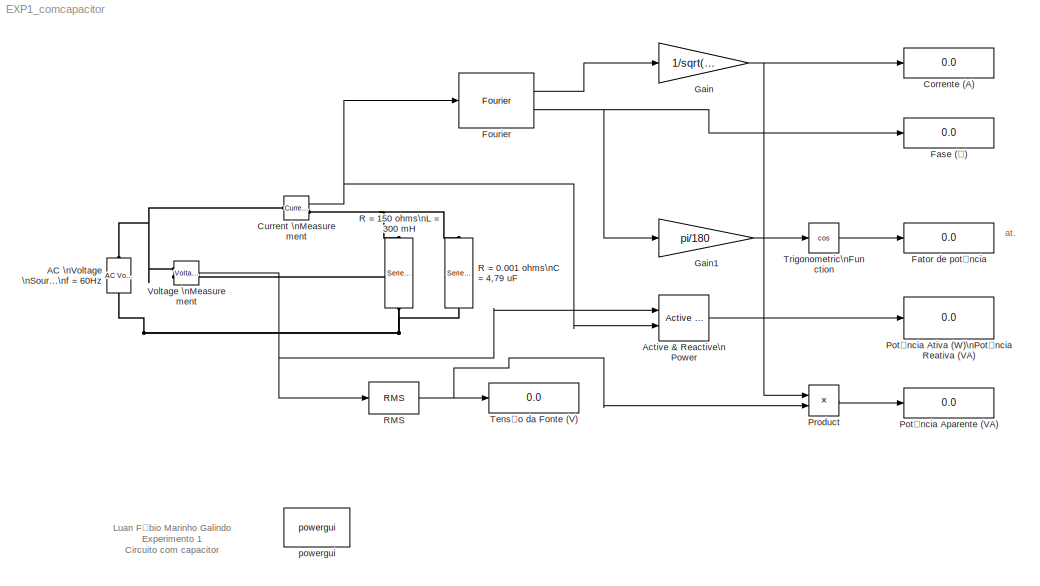
MODEL EXP1_comcapacitor
KIND model
BLOCK [Reference] AC \nVoltage \nSource\nV = 220V\nf = 60Hz  REF=powerlib/Electrical\nSources/AC Voltage Source
  Amplitude = 220*sqrt(2)
  Frequency = 60
  FunctionWithSeparateData = off
  GeneratePreprocessorConditionals = off
  Measurements = None
  Phase = 0
  Ports = [0, 0, 0, 0, 0, 1, 1]
  RTWMemSecDataConstants = Inherit from model
  RTWMemSecDataInternal = Inherit from model
  RTWMemSecDataParameters = Inherit from model
  RTWMemSecFuncExecute = Inherit from model
  RTWMemSecFuncInitTerm = Inherit from model
  SID = 2
  SampleTime = 0
  ShowPortLabels = FromPortIcon
  SourceBlock = powerlib/Electrical\nSources/AC Voltage Source
  SourceType = AC Voltage Source
  SystemSampleTime = -1
BLOCK [Reference] Active & Reactive\nPower  REF=powerlib_extras/Measurements/Active & Reactive\nPower
  FunctionWithSeparateData = off
  GeneratePreprocessorConditionals = off
  Ports = [2, 1]
  RTWMemSecDataConstants = Inherit from model
  RTWMemSecDataInternal = Inherit from model
  RTWMemSecDataParameters = Inherit from model
  RTWMemSecFuncExecute = Inherit from model
  RTWMemSecFuncInitTerm = Inherit from model
  SID = 18
  ShowPortLabels = FromPortIcon
  SourceBlock = powerlib_extras/Measurements/Active & Reactive\nPower
  SourceType = Active & Reactive Power
  SystemSampleTime = -1
  f1 = 60
BLOCK [Display] Corrente (A)
  Decimation = 2
  Format = bank
  Lockdown = off
  Ports = [1]
  SID = 7
BLOCK [Reference] Current \nMeasurement  REF=powerlib/Measurements/Current Measurement
  FunctionWithSeparateData = off
  GeneratePreprocessorConditionals = off
  OutputType = Complex
  PSBequivalent = 0
  PhasorSimulation = off
  Ports = [0, 1, 0, 0, 0, 1, 1]
  RTWMemSecDataConstants = Inherit from model
  RTWMemSecDataInternal = Inherit from model
  RTWMemSecDataParameters = Inherit from model
  RTWMemSecFuncExecute = Inherit from model
  RTWMemSecFuncInitTerm = Inherit from model
  SID = 4
  ShowPortLabels = FromPortIcon
  SourceBlock = powerlib/Measurements/Current Measurement
  SourceType = Current Measurement
  SystemSampleTime = -1
BLOCK [Display] Fase (º)
  Decimation = 2
  Format = bank
  Lockdown = off
  Ports = [1]
  SID = 9
BLOCK [Display] Fator de potência
  Decimation = 2
  Format = bank
  Lockdown = off
  Ports = [1]
  SID = 13
BLOCK [Reference] Fourier  REF=powerlib_extras/Measurements/Fourier
  FunctionWithSeparateData = off
  GeneratePreprocessorConditionals = off
  Ports = [1, 2]
  RTWMemSecDataConstants = Inherit from model
  RTWMemSecDataInternal = Inherit from model
  RTWMemSecDataParameters = Inherit from model
  RTWMemSecFuncExecute = Inherit from model
  RTWMemSecFuncInitTerm = Inherit from model
  SID = 5
  ShowPortLabels = FromPortIcon
  SourceBlock = powerlib_extras/Measurements/Fourier
  SourceType = Fourier analyser
  SystemSampleTime = -1
  f1 = 60
  n = 1
BLOCK [Gain] Gain
  Gain = 1/sqrt(2)
  OutDataTypeStr = Inherit: Inherit via internal rule
  ParamDataTypeStr = Inherit: Inherit via internal rule
  SID = 6
  SaturateOnIntegerOverflow = off
BLOCK [Gain] Gain1
  Gain = pi/180
  OutDataTypeStr = Inherit: Inherit via internal rule
  ParamDataTypeStr = Inherit: Inherit via internal rule
  SID = 11
  SaturateOnIntegerOverflow = off
BLOCK [Display] Potência Aparente (VA)
  Decimation = 2
  Format = bank
  Lockdown = off
  Ports = [1]
  SID = 22
BLOCK [Display] Potência Ativa (W)\nPotência Reativa (VA)
  Decimation = 2
  Format = bank
  Lockdown = off
  Ports = [1]
  SID = 20
BLOCK [Product] Product
  InputSameDT = off
  OutDataTypeStr = Inherit: Inherit via internal rule
  Ports = [2, 1]
  SID = 21
  SaturateOnIntegerOverflow = off
BLOCK [Reference] R = 0.001 ohms\nC = 4,79 uF  REF=powerlib/Elements/Series RLC Branch
  BranchType = RC
  Capacitance = 4.79e-6
  Inductance = 300e-3
  InitialCurrent = 0
  InitialVoltage = 0
  LConnTagsString = __new0
  LeftPortType = p1
  Measurements = None
  PhysicalDomain = powersysdomain
  Ports = [0, 0, 0, 0, 0, 1, 1]
  RConnTagsString = __new0
  Resistance = 0.001
  RightPortType = p1
  SID = 23
  SetiL0 = off
  Setx0 = off
  SourceBlock = powerlib/Elements/Series RLC Branch
  SourceType = Series RLC Branch
  SubClassName = unknown
BLOCK [Reference] R = 150 ohms\nL = 300 mH  REF=powerlib/Elements/Series RLC Branch
  BranchType = RL
  Capacitance = 1e-6
  Inductance = 300e-3
  InitialCurrent = 0
  InitialVoltage = 0
  LConnTagsString = __new0
  LeftPortType = p1
  Measurements = None
  PhysicalDomain = powersysdomain
  Ports = [0, 0, 0, 0, 0, 1, 1]
  RConnTagsString = __new0
  Resistance = 150
  RightPortType = p1
  SID = 3
  SetiL0 = off
  Setx0 = off
  SourceBlock = powerlib/Elements/Series RLC Branch
  SourceType = Series RLC Branch
  SubClassName = unknown
BLOCK [Reference] RMS  REF=powerlib_extras/Measurements/RMS
  FunctionWithSeparateData = off
  GeneratePreprocessorConditionals = off
  Ports = [1, 1]
  RTWMemSecDataConstants = Inherit from model
  RTWMemSecDataInternal = Inherit from model
  RTWMemSecDataParameters = Inherit from model
  RTWMemSecFuncExecute = Inherit from model
  RTWMemSecFuncInitTerm = Inherit from model
  SID = 17
  ShowPortLabels = FromPortIcon
  SourceBlock = powerlib_extras/Measurements/RMS
  SourceType = RMS
  SystemSampleTime = -1
  f1 = 60
BLOCK [Display] Tensão da Fonte (V)
  Decimation = 2
  Format = bank
  Lockdown = off
  Ports = [1]
  SID = 16
BLOCK [Trigonometry] Trigonometric\nFunction
  Operator = cos
  Ports = [1, 1]
  SID = 12
BLOCK [Reference] Voltage \nMeasurement  REF=powerlib/Measurements/Voltage Measurement
  FunctionWithSeparateData = off
  GeneratePreprocessorConditionals = off
  OutputType = Complex
  PSBequivalent = 0
  PhasorSimulation = off
  Ports = [0, 1, 0, 0, 0, 2]
  RTWMemSecDataConstants = Inherit from model
  RTWMemSecDataInternal = Inherit from model
  RTWMemSecDataParameters = Inherit from model
  RTWMemSecFuncExecute = Inherit from model
  RTWMemSecFuncInitTerm = Inherit from model
  SID = 14
  ShowPortLabels = FromPortIcon
  SourceBlock = powerlib/Measurements/Voltage Measurement
  SourceType = Voltage Measurement
  SystemSampleTime = -1
BLOCK [Reference] powergui  REF=powerlib/powergui
  DisableRonSwitches = off
  DisableSnubberDevices = off
  DisableVfSwitches = off
  DisplayEquations = off
  DisplayStyle = 1
  EnableUseOfTLC = off
  ErrMax = 1e-4
  FreqAxis = off
  FunctionMessages = off
  FunctionWithSeparateData = off
  GeneratePreprocessorConditionals = off
  HookPort = off
  Interpol = off
  Iterations = 50
  MaxFrequency = 1000
  Pbase = 100e6
  Ports = []
  Priority = 1
  RTWMemSecDataConstants = Inherit from model
  RTWMemSecDataInternal = Inherit from model
  RTWMemSecDataParameters = Inherit from model
  RTWMemSecFuncExecute = Inherit from model
  RTWMemSecFuncInitTerm = Inherit from model
  ResistiveCurrentMeasurement = off
  RestoreLinks = warning
  SID = 10
  SPID = off
  SampleTime = 50e-6
  ShowGrid = off
  ShowPortLabels = FromPortIcon
  SourceBlock = powerlib/powergui
  SourceType = PSB option menu block
  StartTime = 0.0
  SwTol = 0
  SystemSampleTime = -1
  UnitsV = kV
  UnitsW = MW
  UserDataPersistent = on
  Xlog = on
  Ylog = off
  ZoomFFT = off
  cycles = 1
  display = off
  echomessages = off
  frequency = 60
  frequencyindice = 60
  frequencyindicesteady = 1
  methode = off
  save = off
  variable = ZData
  x0status = blocks
ANNOTATION (root): Luan Fábio Marinho Galindo\nExperimento 1\nCircuito com capacitor
ANNOTATION (root): at.
LINE Active & Reactive\nPower:1 -> Potência Ativa (W)\nPotência Reativa (VA):1
NET Current \nMeasurement:1 -> Active & Reactive\nPower:2, Fourier:1
LINE Fourier:1 -> Gain:1
NET Fourier:2 -> Fase (º):1, Gain1:1
LINE Gain1:1 -> Trigonometric\nFunction:1
NET Gain:1 -> Corrente (A):1, Product:1
LINE Product:1 -> Potência Aparente (VA):1
NET RMS:1 -> Product:2, Tensão da Fonte (V):1
LINE Trigonometric\nFunction:1 -> Fator de potência:1
NET Voltage \nMeasurement:1 -> Active & Reactive\nPower:1, RMS:1
PNET net1: AC \nVoltage \nSource\nV = 220V\nf = 60Hz:LConn1 -- R = 0.001 ohms\nC = 4,79 uF:RConn1 -- R = 150 ohms\nL = 300 mH:RConn1 -- Voltage \nMeasurement:LConn2
PNET net2: AC \nVoltage \nSource\nV = 220V\nf = 60Hz:RConn1 -- Current \nMeasurement:LConn1 -- Voltage \nMeasurement:LConn1
PNET net3: Current \nMeasurement:RConn1 -- R = 0.001 ohms\nC = 4,79 uF:LConn1 -- R = 150 ohms\nL = 300 mH:LConn1
note: NET lines group one-source signal fan-out (src -> all destinations, sorted); 1:1 wires keep LINE; PNET lines group multi-terminal physical nets as a canonical sorted terminal list (undirected conserving connections); 2-terminal nets keep the pairwise PLINE form
